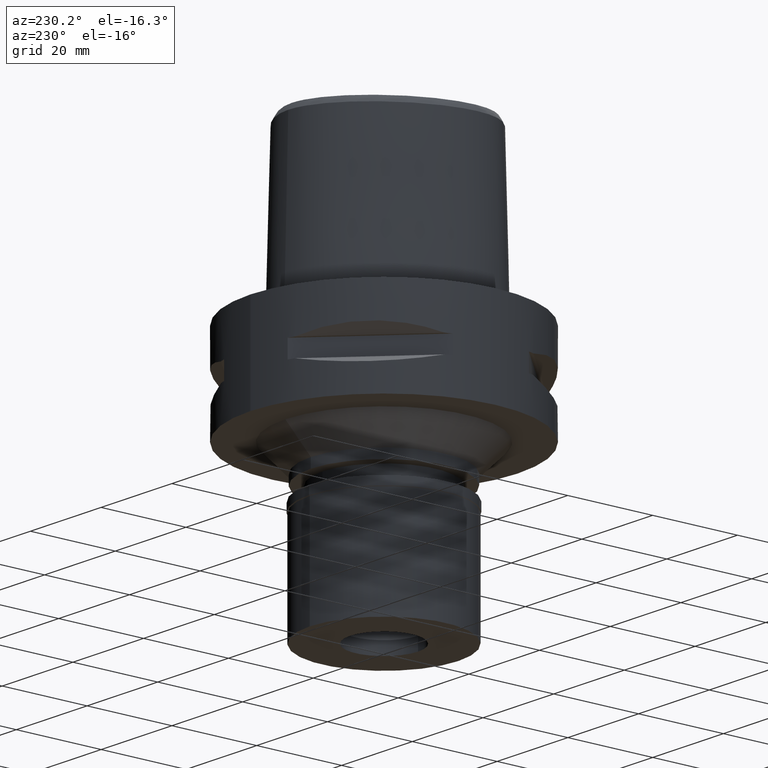
[diagram: clean part render]
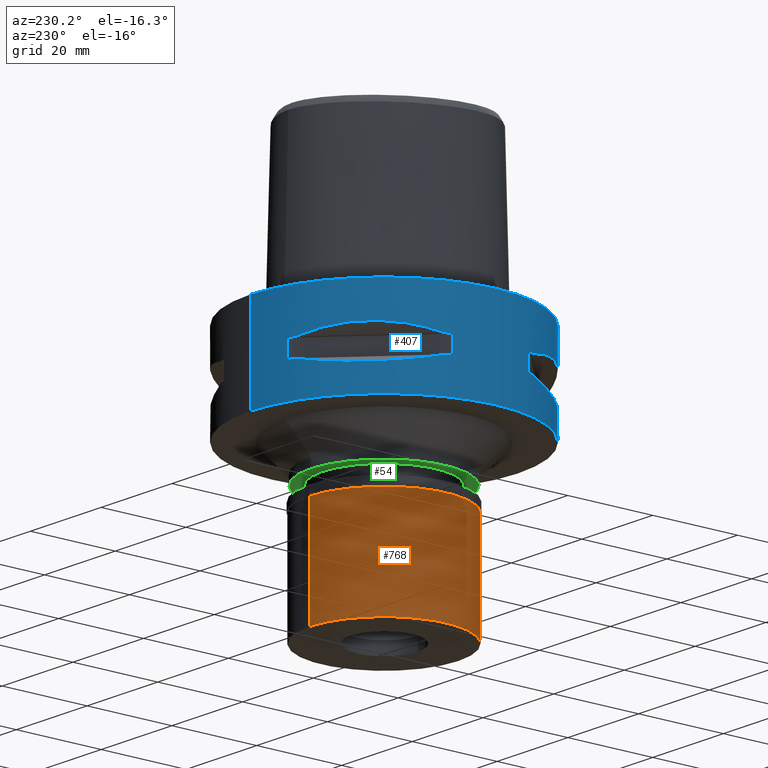
[diagram: same view with three faces highlighted in distinct colors, each labeled with its STEP entity id]
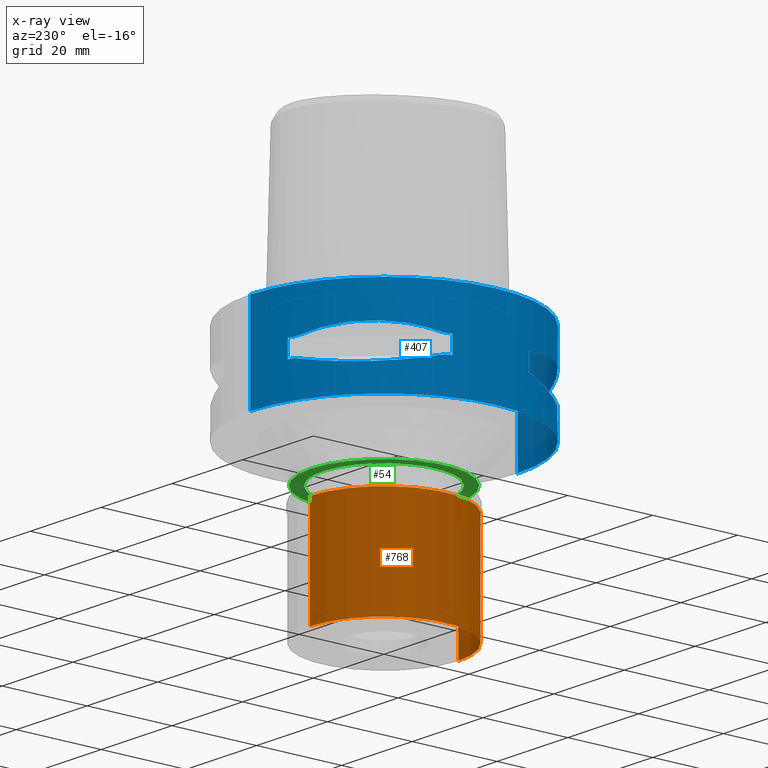
[diagram: x-ray of the same camera — body ghosted, the three highlighted faces saturated]
A machine part, auxiliary view with three faces highlighted in distinct colors.
The next image is the same camera in x-ray (body ghosted, the three faces saturated) — at least one of them is partly hidden behind the body in this view.
Their STEP definitions:

[orange] entity #768 — the highlighted cylindrical surface (partial cylindrical patch) has radius 17.5 mm, axis along (0, 0, -1).
#84 = DIRECTION ( 'NONE',  ( 0.0000000000000000000, 0.0000000000000000000, -1.000000000000000000 ) ) ;
#120 = CARTESIAN_POINT ( 'NONE',  ( 0.0000000000000000000, 17.50000000000000000, -2.100000000000000089 ) ) ;
#663 = AXIS2_PLACEMENT_3D ( 'NONE', #3666, #676, #3983 ) ;
#676 = DIRECTION ( 'NONE',  ( 0.0000000000000000000, 0.0000000000000000000, -1.000000000000000000 ) ) ;
#763 = CARTESIAN_POINT ( 'NONE',  ( 0.0000000000000000000, 17.50000000000000000, -26.70000000000000284 ) ) ;
#768 = ADVANCED_FACE ( 'NONE', ( #2633 ), #2184, .T. ) ;
#806 = CIRCLE ( 'NONE', #1267, 17.50000000000000000 ) ;
#957 = AXIS2_PLACEMENT_3D ( 'NONE', #1140, #84, #3317 ) ;
#1140 = CARTESIAN_POINT ( 'NONE',  ( 0.0000000000000000000, 0.0000000000000000000, 0.0000000000000000000 ) ) ;
#1267 = AXIS2_PLACEMENT_3D ( 'NONE', #2768, #2819, #2036 ) ;
#1651 = VERTEX_POINT ( 'NONE', #4441 ) ;
#1772 = LINE ( 'NONE', #2863, #3872 ) ;
#1798 = EDGE_LOOP ( 'NONE', ( #3828, #4399, #2653, #2811 ) ) ;
#2036 = DIRECTION ( 'NONE',  ( 0.0000000000000000000, 1.000000000000000000, 0.0000000000000000000 ) ) ;
#2184 = CYLINDRICAL_SURFACE ( 'NONE', #957, 17.50000000000000000 ) ;
#2221 = DIRECTION ( 'NONE',  ( 0.0000000000000000000, 0.0000000000000000000, -1.000000000000000000 ) ) ;
#2333 = CARTESIAN_POINT ( 'NONE',  ( 0.0000000000000000000, -17.50000000000000000, -2.100000000000000089 ) ) ;
#2541 = EDGE_CURVE ( 'NONE', #3635, #1651, #1772, .T. ) ;
#2598 = LINE ( 'NONE', #120, #3955 ) ;
#2633 = FACE_OUTER_BOUND ( 'NONE', #1798, .T. ) ;
#2653 = ORIENTED_EDGE ( 'NONE', *, *, #4419, .T. ) ;
#2768 = CARTESIAN_POINT ( 'NONE',  ( 0.0000000000000000000, 0.0000000000000000000, -26.70000000000000284 ) ) ;
#2811 = ORIENTED_EDGE ( 'NONE', *, *, #4233, .T. ) ;
#2819 = DIRECTION ( 'NONE',  ( 0.0000000000000000000, 0.0000000000000000000, 1.000000000000000000 ) ) ;
#2863 = CARTESIAN_POINT ( 'NONE',  ( 0.0000000000000000000, -17.50000000000000000, -2.100000000000000089 ) ) ;
#3202 = EDGE_CURVE ( 'NONE', #4619, #1651, #806, .T. ) ;
#3294 = VERTEX_POINT ( 'NONE', #4361 ) ;
#3317 = DIRECTION ( 'NONE',  ( 0.0000000000000000000, -1.000000000000000000, 0.0000000000000000000 ) ) ;
#3412 = CIRCLE ( 'NONE', #663, 17.50000000000000000 ) ;
#3590 = DIRECTION ( 'NONE',  ( 0.0000000000000000000, 0.0000000000000000000, -1.000000000000000000 ) ) ;
#3635 = VERTEX_POINT ( 'NONE', #2333 ) ;
#3666 = CARTESIAN_POINT ( 'NONE',  ( 0.0000000000000000000, 0.0000000000000000000, -2.100000000000000089 ) ) ;
#3828 = ORIENTED_EDGE ( 'NONE', *, *, #3202, .T. ) ;
#3872 = VECTOR ( 'NONE', #3590, 1000.000000000000000 ) ;
#3955 = VECTOR ( 'NONE', #2221, 1000.000000000000000 ) ;
#3983 = DIRECTION ( 'NONE',  ( 0.0000000000000000000, -1.000000000000000000, 0.0000000000000000000 ) ) ;
#4233 = EDGE_CURVE ( 'NONE', #3294, #4619, #2598, .T. ) ;
#4361 = CARTESIAN_POINT ( 'NONE',  ( 0.0000000000000000000, 17.50000000000000000, -2.100000000000000089 ) ) ;
#4399 = ORIENTED_EDGE ( 'NONE', *, *, #2541, .F. ) ;
#4419 = EDGE_CURVE ( 'NONE', #3635, #3294, #3412, .T. ) ;
#4441 = CARTESIAN_POINT ( 'NONE',  ( 0.0000000000000000000, -17.50000000000000000, -26.70000000000000284 ) ) ;
#4619 = VERTEX_POINT ( 'NONE', #763 ) ;

[blue] entity #407 — the highlighted cylindrical surface (partial cylindrical patch) has radius 31.5 mm, axis along (0, 0, -1).
#21 = CARTESIAN_POINT ( 'NONE',  ( -25.43927894891552910, 18.59229662065583355, -15.62866126334707850 ) ) ;
#45 = CARTESIAN_POINT ( 'NONE',  ( -18.81462633026353259, -25.37272068403002478, -8.309724968617139496 ) ) ;
#89 = FACE_BOUND ( 'NONE', #1484, .T. ) ;
#94 = CARTESIAN_POINT ( 'NONE',  ( -26.42800887047648928, 17.14106442934974339, -15.43984550238795883 ) ) ;
#113 = VECTOR ( 'NONE', #933, 1000.000000000000000 ) ;
#133 = CARTESIAN_POINT ( 'NONE',  ( -30.19251670572000279, 8.981198972016999349, -14.05000000000000071 ) ) ;
#175 = VERTEX_POINT ( 'NONE', #223 ) ;
#195 = ORIENTED_EDGE ( 'NONE', *, *, #3665, .F. ) ;
#221 = CARTESIAN_POINT ( 'NONE',  ( -8.981198972016999349, 30.19251670572000279, -14.05000000000000071 ) ) ;
#223 = CARTESIAN_POINT ( 'NONE',  ( -29.71690375017999841, 10.44775724750000023, -9.950000000002001244 ) ) ;
#258 = CARTESIAN_POINT ( 'NONE',  ( 0.0000000000000000000, 1.254650645725999920E-14, -14.05000000000000071 ) ) ;
#316 = CARTESIAN_POINT ( 'NONE',  ( -16.80193241490824008, 26.64486562695909555, -15.38992683736019096 ) ) ;
#324 = CARTESIAN_POINT ( 'NONE',  ( -12.73197616788688613, -28.91382665368660909, -14.65467361754157416 ) ) ;
#336 = CARTESIAN_POINT ( 'NONE',  ( 0.0000000000000000000, 1.254650645725999920E-14, -9.950000000000001066 ) ) ;
#342 = ORIENTED_EDGE ( 'NONE', *, *, #4001, .T. ) ;
#346 = EDGE_CURVE ( 'NONE', #4212, #3122, #1171, .T. ) ;
#350 = VERTEX_POINT ( 'NONE', #3687 ) ;
#356 = CARTESIAN_POINT ( 'NONE',  ( 0.0000000000000000000, 1.254650645725999920E-14, -14.05000000000000071 ) ) ;
#362 = CARTESIAN_POINT ( 'NONE',  ( 0.0000000000000000000, 1.254650645725999920E-14, -14.05000000000000071 ) ) ;
#366 = CARTESIAN_POINT ( 'NONE',  ( -25.37272068398780434, 18.81462633032050746, -8.309724968599480732 ) ) ;
#372 = ORIENTED_EDGE ( 'NONE', *, *, #1135, .F. ) ;
#396 = CARTESIAN_POINT ( 'NONE',  ( -29.71690375017999841, -10.44775724750000023, -9.950000000002001244 ) ) ;
#407 = ADVANCED_FACE ( 'NONE', ( #1881, #89, #1168 ), #4554, .T. ) ;
#420 = AXIS2_PLACEMENT_3D ( 'NONE', #4609, #1649, #3126 ) ;
#433 = CARTESIAN_POINT ( 'NONE',  ( -27.86285265926213128, 14.89252659058332462, -15.10765629752265049 ) ) ;
#462 = VERTEX_POINT ( 'NONE', #2715 ) ;
#535 = EDGE_CURVE ( 'NONE', #3782, #4471, #4278, .T. ) ;
#557 = DIRECTION ( 'NONE',  ( 0.0000000000000000000, 0.0000000000000000000, 1.000000000000000000 ) ) ;
#566 = ORIENTED_EDGE ( 'NONE', *, *, #2921, .T. ) ;
#579 = VECTOR ( 'NONE', #2526, 1000.000000000000000 ) ;
#589 = CARTESIAN_POINT ( 'NONE',  ( 0.0000000000000000000, 1.254650645725999920E-14, 0.0000000000000000000 ) ) ;
#598 = EDGE_LOOP ( 'NONE', ( #3330, #4375, #4118, #1127 ) ) ;
#670 = CARTESIAN_POINT ( 'NONE',  ( -26.70521063584573085, -16.70616724746297521, -15.37546661818069893 ) ) ;
#690 = CARTESIAN_POINT ( 'NONE',  ( -26.64486562695883620, -16.80193241490900746, -15.38992683736042011 ) ) ;
#699 = CARTESIAN_POINT ( 'NONE',  ( -13.25636937905250079, 28.62019653468292901, -14.74888225541883280 ) ) ;
#770 = CARTESIAN_POINT ( 'NONE',  ( 0.0000000000000000000, 31.50000000000000000, 0.0000000000000000000 ) ) ;
#771 = CARTESIAN_POINT ( 'NONE',  ( -26.54368690921832652, 16.96123479565093461, -15.41365572341623924 ) ) ;
#813 = DIRECTION ( 'NONE',  ( -0.3316748332540863653, -0.9433937698468619626, 0.0000000000000000000 ) ) ;
#814 = DIRECTION ( 'NONE',  ( 0.0000000000000000000, 1.000000000000000000, 0.0000000000000000000 ) ) ;
#851 = ORIENTED_EDGE ( 'NONE', *, *, #3686, .F. ) ;
#895 = AXIS2_PLACEMENT_3D ( 'NONE', #362, #2051, #3521 ) ;
#912 = LINE ( 'NONE', #2367, #1175 ) ;
#933 = DIRECTION ( 'NONE',  ( 0.0000000000000000000, 0.0000000000000000000, -1.000000000000000000 ) ) ;
#952 = DIRECTION ( 'NONE',  ( 0.0000000000000000000, 0.0000000000000000000, -1.000000000000000000 ) ) ;
#955 = CARTESIAN_POINT ( 'NONE',  ( -29.71690375017999841, -10.44775724750000023, -14.05000000000000071 ) ) ;
#990 = CARTESIAN_POINT ( 'NONE',  ( -16.96123479565102343, -26.54368690921830520, -15.41365572341627121 ) ) ;
#1046 = CIRCLE ( 'NONE', #1653, 31.50000000000001776 ) ;
#1081 = CARTESIAN_POINT ( 'NONE',  ( -16.89910283486704401, 26.58330558444640701, -15.40446471307534893 ) ) ;
#1082 = CARTESIAN_POINT ( 'NONE',  ( -18.81455742163205613, 25.37277178168287151, -8.309746333130389573 ) ) ;
#1092 = DIRECTION ( 'NONE',  ( -0.2851174276831918153, -0.9584925938322735872, 0.0000000000000000000 ) ) ;
#1120 = CARTESIAN_POINT ( 'NONE',  ( 0.0000000000000000000, 1.254650645725999920E-14, -9.950000000000001066 ) ) ;
#1122 = CARTESIAN_POINT ( 'NONE',  ( 0.0000000000000000000, 1.254650645725999920E-14, -22.00000000000000000 ) ) ;
#1127 = ORIENTED_EDGE ( 'NONE', *, *, #2958, .T. ) ;
#1135 = EDGE_CURVE ( 'NONE', #3440, #4312, #912, .T. ) ;
#1151 = CARTESIAN_POINT ( 'NONE',  ( -28.91382665368477944, 12.73197616789208197, -14.65467361754293485 ) ) ;
#1167 = DIRECTION ( 'NONE',  ( 0.0000000000000000000, 0.0000000000000000000, 1.000000000000000000 ) ) ;
#1168 = FACE_BOUND ( 'NONE', #4553, .T. ) ;
#1171 = CIRCLE ( 'NONE', #3388, 31.50000000000000000 ) ;
#1175 = VECTOR ( 'NONE', #1922, 1000.000000000000000 ) ;
#1177 = CARTESIAN_POINT ( 'NONE',  ( -27.88210502983995553, 14.84430321578704870, -8.906184731970032686 ) ) ;
#1204 = CARTESIAN_POINT ( 'NONE',  ( -29.71690375017999841, 10.44775724750000023, -9.950000000002001244 ) ) ;
#1220 = DIRECTION ( 'NONE',  ( 0.0000000000000000000, -1.000000000000000000, 0.0000000000000000000 ) ) ;
#1226 = CARTESIAN_POINT ( 'NONE',  ( -23.90617837150509573, -20.64154884324738504, -8.160627831300901747 ) ) ;
#1249 = CARTESIAN_POINT ( 'NONE',  ( -29.71690375017999841, 10.44775724750000023, -14.05000000000000071 ) ) ;
#1251 = VERTEX_POINT ( 'NONE', #3611 ) ;
#1268 = CARTESIAN_POINT ( 'NONE',  ( 0.0000000000000000000, 1.254650645725999920E-14, 2.449999999999999734 ) ) ;
#1300 = CARTESIAN_POINT ( 'NONE',  ( 0.0000000000000000000, 31.50000000000000000, 0.0000000000000000000 ) ) ;
#1333 = DIRECTION ( 'NONE',  ( -0.9433937698468619626, 0.3316748332540863653, 0.0000000000000000000 ) ) ;
#1341 = AXIS2_PLACEMENT_3D ( 'NONE', #3480, #557, #2065 ) ;
#1363 = EDGE_CURVE ( 'NONE', #1251, #2195, #2866, .T. ) ;
#1371 = DIRECTION ( 'NONE',  ( 0.0000000000000000000, 0.0000000000000000000, -1.000000000000000000 ) ) ;
#1415 = CARTESIAN_POINT ( 'NONE',  ( -12.70092055730904868, 28.92474506844683901, -9.353547358229722164 ) ) ;
#1437 = CARTESIAN_POINT ( 'NONE',  ( -16.70616724746166426, 26.70521063584618915, -15.37546661818032945 ) ) ;
#1439 = VERTEX_POINT ( 'NONE', #4014 ) ;
#1456 = CARTESIAN_POINT ( 'NONE',  ( -18.86897208075159327, 25.32725744466621975, -15.69588095933951699 ) ) ;
#1479 = CARTESIAN_POINT ( 'NONE',  ( -26.01217882834692929, 17.76952662672333716, -15.52665221626398839 ) ) ;
#1484 = EDGE_LOOP ( 'NONE', ( #2894, #195, #566, #4600, #3692, #2483, #4358, #4313 ) ) ;
#1528 = CARTESIAN_POINT ( 'NONE',  ( -27.88214534467230976, -14.84422749205291581, -8.906206096483270329 ) ) ;
#1563 = VERTEX_POINT ( 'NONE', #3519 ) ;
#1588 = CARTESIAN_POINT ( 'NONE',  ( -30.19251670572000279, -8.981198972016999349, -9.950000000000001066 ) ) ;
#1637 = LINE ( 'NONE', #1588, #113 ) ;
#1649 = DIRECTION ( 'NONE',  ( 0.0000000000000000000, 0.0000000000000000000, 1.000000000000000000 ) ) ;
#1653 = AXIS2_PLACEMENT_3D ( 'NONE', #356, #1371, #1092 ) ;
#1731 = EDGE_CURVE ( 'NONE', #2075, #175, #1792, .T. ) ;
#1744 = CARTESIAN_POINT ( 'NONE',  ( -23.89673728052704504, -20.65093790438166010, -15.83935804901764932 ) ) ;
#1750 = CARTESIAN_POINT ( 'NONE',  ( 0.0000000000000000000, -31.50000000000000000, -22.00000000000000000 ) ) ;
#1792 = B_SPLINE_CURVE_WITH_KNOTS ( 'NONE', 3,
 ( #4708, #1415, #1795, #1082, #3265, #2907, #366, #1177, #2752, #1204 ),
 .UNSPECIFIED., .F., .F.,
 ( 4, 2, 2, 2, 4 ),
 ( 0.0000000000000000000, 0.2500000000000000000, 0.5000000000000000000, 0.7500000000000000000, 1.000000000000000000 ),
 .UNSPECIFIED. ) ;
#1794 = CARTESIAN_POINT ( 'NONE',  ( -16.48208282229422039, 26.84474411198782207, -15.34094883778343110 ) ) ;
#1795 = CARTESIAN_POINT ( 'NONE',  ( -14.84422749199032943, 27.88214534470565198, -8.906206096500943303 ) ) ;
#1860 = CARTESIAN_POINT ( 'NONE',  ( 0.0000000000000000000, 31.50000000000000000, -22.00000000000000000 ) ) ;
#1869 = VERTEX_POINT ( 'NONE', #1249 ) ;
#1880 = CARTESIAN_POINT ( 'NONE',  ( -15.11986997311003300, 27.64634172018012848, -15.11207862404048008 ) ) ;
#1881 = FACE_OUTER_BOUND ( 'NONE', #598, .T. ) ;
#1904 = CARTESIAN_POINT ( 'NONE',  ( -10.44775724750000023, -29.71690375017999841, -9.950000000002001244 ) ) ;
#1922 = DIRECTION ( 'NONE',  ( 0.0000000000000000000, 0.0000000000000000000, 1.000000000000000000 ) ) ;
#1962 = CARTESIAN_POINT ( 'NONE',  ( -29.71690375017999841, -10.44775724750000023, -9.950000000002001244 ) ) ;
#1981 = CARTESIAN_POINT ( 'NONE',  ( -27.11872488588982577, -16.03138450079550026, -15.26880420108212633 ) ) ;
#2014 = AXIS2_PLACEMENT_3D ( 'NONE', #1268, #4508, #1220 ) ;
#2051 = DIRECTION ( 'NONE',  ( 0.0000000000000000000, 0.0000000000000000000, -1.000000000000000000 ) ) ;
#2065 = DIRECTION ( 'NONE',  ( -0.9584925938322735872, -0.2851174276831918153, 0.0000000000000000000 ) ) ;
#2075 = VERTEX_POINT ( 'NONE', #3896 ) ;
#2101 = CARTESIAN_POINT ( 'NONE',  ( -17.14106442935278807, -26.42800887047471647, -15.43984550238848108 ) ) ;
#2111 = AXIS2_PLACEMENT_3D ( 'NONE', #1120, #1167, #813 ) ;
#2140 = CARTESIAN_POINT ( 'NONE',  ( -25.32725744467784779, -18.86897208072815246, -15.69588095933470129 ) ) ;
#2151 = ORIENTED_EDGE ( 'NONE', *, *, #4227, .T. ) ;
#2195 = VERTEX_POINT ( 'NONE', #221 ) ;
#2208 = CARTESIAN_POINT ( 'NONE',  ( -8.981198972019999616, -30.19251670572000279, -14.05000000000000071 ) ) ;
#2245 = CARTESIAN_POINT ( 'NONE',  ( -12.70097436179016093, -28.92472615206971653, -9.353533115220882266 ) ) ;
#2346 = CARTESIAN_POINT ( 'NONE',  ( -28.62019653467917379, -13.25636937906317847, -14.74888225542168207 ) ) ;
#2367 = CARTESIAN_POINT ( 'NONE',  ( -8.981198972016999349, -30.19251670572000279, -14.05000000000000071 ) ) ;
#2380 = EDGE_CURVE ( 'NONE', #3385, #4244, #3632, .T. ) ;
#2381 = LINE ( 'NONE', #1300, #3712 ) ;
#2391 = ORIENTED_EDGE ( 'NONE', *, *, #535, .F. ) ;
#2400 = VERTEX_POINT ( 'NONE', #2411 ) ;
#2411 = CARTESIAN_POINT ( 'NONE',  ( -30.19251670572000279, -8.981198972019999616, -9.950000000000001066 ) ) ;
#2451 = CARTESIAN_POINT ( 'NONE',  ( -14.89252659057813055, -27.86285265926396093, -15.10765629752128092 ) ) ;
#2483 = ORIENTED_EDGE ( 'NONE', *, *, #4217, .F. ) ;
#2485 = EDGE_CURVE ( 'NONE', #3385, #3122, #3971, .T. ) ;
#2487 = DIRECTION ( 'NONE',  ( 0.0000000000000000000, 0.0000000000000000000, -1.000000000000000000 ) ) ;
#2526 = DIRECTION ( 'NONE',  ( 0.0000000000000000000, 0.0000000000000000000, -1.000000000000000000 ) ) ;
#2558 = EDGE_CURVE ( 'NONE', #1251, #1869, #3284, .T. ) ;
#2627 = ORIENTED_EDGE ( 'NONE', *, *, #4610, .T. ) ;
#2646 = DIRECTION ( 'NONE',  ( 0.0000000000000000000, 0.0000000000000000000, -1.000000000000000000 ) ) ;
#2698 = CARTESIAN_POINT ( 'NONE',  ( -26.48642424310615340, 17.05047092244463869, -15.42670883407968496 ) ) ;
#2708 = DIRECTION ( 'NONE',  ( 0.0000000000000000000, 0.0000000000000000000, 1.000000000000000000 ) ) ;
#2715 = CARTESIAN_POINT ( 'NONE',  ( -30.19251670572000279, -8.981198972016999349, -14.05000000000000071 ) ) ;
#2726 = AXIS2_PLACEMENT_3D ( 'NONE', #4208, #3152, #3199 ) ;
#2736 = CIRCLE ( 'NONE', #895, 31.50000000000000711 ) ;
#2752 = CARTESIAN_POINT ( 'NONE',  ( -28.92472615205409170, 12.70097436183466932, -9.353533115209113902 ) ) ;
#2773 = DIRECTION ( 'NONE',  ( 0.0000000000000000000, 0.0000000000000000000, -1.000000000000000000 ) ) ;
#2817 = CARTESIAN_POINT ( 'NONE',  ( -26.58330558444622227, -16.89910283486742415, -15.40446471307544662 ) ) ;
#2831 = EDGE_CURVE ( 'NONE', #2400, #3417, #2941, .T. ) ;
#2847 = DIRECTION ( 'NONE',  ( 0.0000000000000000000, -1.000000000000000000, 0.0000000000000000000 ) ) ;
#2866 = CIRCLE ( 'NONE', #3944, 31.50000000000000711 ) ;
#2874 = CARTESIAN_POINT ( 'NONE',  ( -26.84474411198696231, -16.48208282229673927, -15.34094883778413454 ) ) ;
#2894 = ORIENTED_EDGE ( 'NONE', *, *, #3905, .T. ) ;
#2907 = CARTESIAN_POINT ( 'NONE',  ( -23.90617837147178193, 20.64154884328073081, -8.160613588468008217 ) ) ;
#2921 = EDGE_CURVE ( 'NONE', #1439, #1869, #3950, .T. ) ;
#2926 = CARTESIAN_POINT ( 'NONE',  ( -20.65093790436479892, 23.89673728055571900, -15.83935804902246147 ) ) ;
#2941 = CIRCLE ( 'NONE', #1341, 31.50000000000001776 ) ;
#2947 = VECTOR ( 'NONE', #2708, 1000.000000000000000 ) ;
#2952 = CARTESIAN_POINT ( 'NONE',  ( -26.29071741523750916, 17.35163608580039707, -15.46976201925746786 ) ) ;
#2958 = EDGE_CURVE ( 'NONE', #4244, #4212, #2381, .T. ) ;
#3026 = CARTESIAN_POINT ( 'NONE',  ( -25.37277178164059421, -18.81455742168903456, -8.309746333112720151 ) ) ;
#3051 = CARTESIAN_POINT ( 'NONE',  ( -10.44775724750000023, -29.71690375017999841, -9.950000000002001244 ) ) ;
#3122 = VERTEX_POINT ( 'NONE', #1750 ) ;
#3126 = DIRECTION ( 'NONE',  ( -0.2851174276831918153, 0.9584925938322735872, 0.0000000000000000000 ) ) ;
#3152 = DIRECTION ( 'NONE',  ( 0.0000000000000000000, 0.0000000000000000000, -1.000000000000000000 ) ) ;
#3194 = EDGE_CURVE ( 'NONE', #350, #2075, #4482, .T. ) ;
#3199 = DIRECTION ( 'NONE',  ( -0.9584925938322735872, 0.2851174276831918153, 0.0000000000000000000 ) ) ;
#3213 = CARTESIAN_POINT ( 'NONE',  ( -10.44775724750000023, -29.71690375017999841, -14.05000000000000071 ) ) ;
#3265 = CARTESIAN_POINT ( 'NONE',  ( -20.64154884328072370, 23.90617837147178193, -8.160627831312675440 ) ) ;
#3284 = B_SPLINE_CURVE_WITH_KNOTS ( 'NONE', 3,
 ( #3989, #4351, #699, #1880, #4329, #1794, #1437, #316, #4369, #1081, #1456, #2926, #4037, #3308, #21, #1479, #2952, #94, #2698, #4080, #771, #433, #1151, #3796 ),
 .UNSPECIFIED., .F., .F.,
 ( 4, 1, 1, 1, 1, 1, 2, 2, 2, 1, 1, 1, 1, 1, 2, 2, 4 ),
 ( 0.0000000000000000000, 0.1249999999999908684, 0.1874999999999862887, 0.2187499999999841516, 0.2343749999999829858, 0.2421874999999825973, 0.2460937499999824030, 0.2499999999999822364, 0.4999999999999892308, 0.6249999999999928946, 0.6874999999999945599, 0.7187499999999956701, 0.7343749999999963363, 0.7421874999999965583, 0.7460937499999964473, 0.7499999999999963363, 1.000000000000000000 ),
 .UNSPECIFIED. ) ;
#3287 = CARTESIAN_POINT ( 'NONE',  ( 0.0000000000000000000, -31.50000000000000000, 0.0000000000000000000 ) ) ;
#3308 = CARTESIAN_POINT ( 'NONE',  ( -24.23018836745160698, 20.18579225686725565, -15.78559396979343354 ) ) ;
#3330 = ORIENTED_EDGE ( 'NONE', *, *, #346, .T. ) ;
#3385 = VERTEX_POINT ( 'NONE', #3998 ) ;
#3388 = AXIS2_PLACEMENT_3D ( 'NONE', #1122, #3765, #814 ) ;
#3403 = CARTESIAN_POINT ( 'NONE',  ( -28.92474506843119286, -12.70092055735351266, -9.353547358217943142 ) ) ;
#3417 = VERTEX_POINT ( 'NONE', #396 ) ;
#3425 = CARTESIAN_POINT ( 'NONE',  ( -29.31542262584122227, -11.58970337495909853, -14.35229357167468578 ) ) ;
#3431 = CARTESIAN_POINT ( 'NONE',  ( -20.64154884324738148, -23.90617837150509928, -8.160613588479783687 ) ) ;
#3440 = VERTEX_POINT ( 'NONE', #2208 ) ;
#3476 = B_SPLINE_CURVE_WITH_KNOTS ( 'NONE', 3,
 ( #1962, #3403, #1528, #3026, #1226, #3431, #45, #4439, #2245, #3051 ),
 .UNSPECIFIED., .F., .F.,
 ( 4, 2, 2, 2, 4 ),
 ( 0.0000000000000000000, 0.2499999999999999445, 0.4999999999999998890, 0.7499999999999997780, 1.000000000000000000 ),
 .UNSPECIFIED. ) ;
#3480 = CARTESIAN_POINT ( 'NONE',  ( 0.0000000000000000000, 1.254650645725999920E-14, -9.950000000000001066 ) ) ;
#3499 = CIRCLE ( 'NONE', #2111, 31.50000000000000711 ) ;
#3519 = CARTESIAN_POINT ( 'NONE',  ( -30.19251670572000279, 8.981198972016999349, -9.950000000000001066 ) ) ;
#3521 = DIRECTION ( 'NONE',  ( -0.9433937698468619626, -0.3316748332540863653, 0.0000000000000000000 ) ) ;
#3550 = CARTESIAN_POINT ( 'NONE',  ( -16.98999780422360573, -26.52527364208699723, -15.41788098766641646 ) ) ;
#3598 = CARTESIAN_POINT ( 'NONE',  ( -17.35163608580627681, -26.29071741523403816, -15.46976201925846439 ) ) ;
#3611 = CARTESIAN_POINT ( 'NONE',  ( -10.44775724750000023, 29.71690375017999841, -14.05000000000000071 ) ) ;
#3615 = CARTESIAN_POINT ( 'NONE',  ( -20.18579225689235912, -24.23018836743684545, -15.78559396979766305 ) ) ;
#3632 = CIRCLE ( 'NONE', #4096, 31.50000000000000000 ) ;
#3665 = EDGE_CURVE ( 'NONE', #1439, #1563, #3829, .T. ) ;
#3686 = EDGE_CURVE ( 'NONE', #2400, #462, #1637, .T. ) ;
#3687 = CARTESIAN_POINT ( 'NONE',  ( -8.981198972019999616, 30.19251670572000279, -9.950000000000001066 ) ) ;
#3692 = ORIENTED_EDGE ( 'NONE', *, *, #1363, .T. ) ;
#3712 = VECTOR ( 'NONE', #2773, 1000.000000000000000 ) ;
#3720 = CARTESIAN_POINT ( 'NONE',  ( -8.981198972016999349, 30.19251670572000279, -9.950000000000001066 ) ) ;
#3765 = DIRECTION ( 'NONE',  ( 0.0000000000000000000, 0.0000000000000000000, 1.000000000000000000 ) ) ;
#3776 = ORIENTED_EDGE ( 'NONE', *, *, #4355, .T. ) ;
#3782 = VERTEX_POINT ( 'NONE', #955 ) ;
#3796 = CARTESIAN_POINT ( 'NONE',  ( -29.71690375017999841, 10.44775724750000023, -14.05000000000000071 ) ) ;
#3798 = CIRCLE ( 'NONE', #4267, 31.50000000000000711 ) ;
#3815 = CARTESIAN_POINT ( 'NONE',  ( -27.64634172017731117, -15.11986997311805325, -15.11207862404262947 ) ) ;
#3829 = LINE ( 'NONE', #133, #2947 ) ;
#3896 = CARTESIAN_POINT ( 'NONE',  ( -10.44775724750000023, 29.71690375017999841, -9.950000000002001244 ) ) ;
#3905 = EDGE_CURVE ( 'NONE', #175, #1563, #3798, .T. ) ;
#3940 = CARTESIAN_POINT ( 'NONE',  ( -8.981198972016999349, -30.19251670572000279, -9.950000000000001066 ) ) ;
#3944 = AXIS2_PLACEMENT_3D ( 'NONE', #258, #2487, #3952 ) ;
#3950 = CIRCLE ( 'NONE', #2726, 31.50000000000001776 ) ;
#3952 = DIRECTION ( 'NONE',  ( -0.3316748332540863653, 0.9433937698468619626, 0.0000000000000000000 ) ) ;
#3957 = CARTESIAN_POINT ( 'NONE',  ( -26.60451452154899243, -16.86571563436900334, -15.39949295786335703 ) ) ;
#3971 = LINE ( 'NONE', #3287, #579 ) ;
#3989 = CARTESIAN_POINT ( 'NONE',  ( -10.44775724750000023, 29.71690375017999841, -14.05000000000000071 ) ) ;
#3998 = CARTESIAN_POINT ( 'NONE',  ( 0.0000000000000000000, -31.50000000000000000, 0.0000000000000000000 ) ) ;
#4001 = EDGE_CURVE ( 'NONE', #3782, #462, #2736, .T. ) ;
#4014 = CARTESIAN_POINT ( 'NONE',  ( -30.19251670572000279, 8.981198972019999616, -14.05000000000000071 ) ) ;
#4034 = DIRECTION ( 'NONE',  ( 0.0000000000000000000, 0.0000000000000000000, 1.000000000000000000 ) ) ;
#4037 = CARTESIAN_POINT ( 'NONE',  ( -23.08532645888064394, 21.46242677078517502, -15.83938991065631363 ) ) ;
#4080 = CARTESIAN_POINT ( 'NONE',  ( -26.52527364208752303, 16.98999780422271044, -15.41788098766625659 ) ) ;
#4096 = AXIS2_PLACEMENT_3D ( 'NONE', #589, #952, #2847 ) ;
#4118 = ORIENTED_EDGE ( 'NONE', *, *, #2380, .T. ) ;
#4208 = CARTESIAN_POINT ( 'NONE',  ( 0.0000000000000000000, 1.254650645725999920E-14, -14.05000000000000071 ) ) ;
#4212 = VERTEX_POINT ( 'NONE', #1860 ) ;
#4217 = EDGE_CURVE ( 'NONE', #350, #2195, #4489, .T. ) ;
#4227 = EDGE_CURVE ( 'NONE', #3417, #4517, #3476, .T. ) ;
#4244 = VERTEX_POINT ( 'NONE', #770 ) ;
#4267 = AXIS2_PLACEMENT_3D ( 'NONE', #336, #4034, #1333 ) ;
#4278 = B_SPLINE_CURVE_WITH_KNOTS ( 'NONE', 3,
 ( #4530, #3425, #2346, #3815, #1981, #2874, #670, #690, #3957, #2817, #2140, #1744, #4280, #3615, #4319, #4359, #3598, #2101, #4718, #3550, #990, #2451, #324, #3213 ),
 .UNSPECIFIED., .F., .F.,
 ( 4, 1, 1, 1, 1, 1, 2, 2, 2, 1, 1, 1, 1, 1, 2, 2, 4 ),
 ( 0.0000000000000000000, 0.1249999999999996947, 0.1874999999999995837, 0.2187499999999996392, 0.2343749999999997224, 0.2421874999999996392, 0.2460937499999994726, 0.2499999999999993339, 0.4999999999999910072, 0.6249999999999866773, 0.6874999999999845679, 0.7187499999999832356, 0.7343749999999825695, 0.7421874999999822364, 0.7460937499999822364, 0.7499999999999822364, 1.000000000000000000 ),
 .UNSPECIFIED. ) ;
#4280 = CARTESIAN_POINT ( 'NONE',  ( -21.46242677079953509, -23.08532645887220625, -15.83938991065873481 ) ) ;
#4312 = VERTEX_POINT ( 'NONE', #3940 ) ;
#4313 = ORIENTED_EDGE ( 'NONE', *, *, #1731, .T. ) ;
#4319 = CARTESIAN_POINT ( 'NONE',  ( -18.59229662067467004, -25.43927894890445529, -15.62866126335025641 ) ) ;
#4329 = CARTESIAN_POINT ( 'NONE',  ( -16.03138450079080712, 27.11872488589147068, -15.26880420108086156 ) ) ;
#4351 = CARTESIAN_POINT ( 'NONE',  ( -11.58970337495298608, 29.31542262584333969, -14.35229357167303021 ) ) ;
#4355 = EDGE_CURVE ( 'NONE', #3440, #4471, #1046, .T. ) ;
#4358 = ORIENTED_EDGE ( 'NONE', *, *, #3194, .T. ) ;
#4359 = CARTESIAN_POINT ( 'NONE',  ( -17.76952662673432570, -26.01217882834047401, -15.52665221626585002 ) ) ;
#4369 = CARTESIAN_POINT ( 'NONE',  ( -16.86571563436860188, 26.60451452154913454, -15.39949295786322558 ) ) ;
#4375 = ORIENTED_EDGE ( 'NONE', *, *, #2485, .F. ) ;
#4439 = CARTESIAN_POINT ( 'NONE',  ( -14.84430321572441613, -27.88210502987326578, -8.906184731987689673 ) ) ;
#4448 = ORIENTED_EDGE ( 'NONE', *, *, #2831, .T. ) ;
#4471 = VERTEX_POINT ( 'NONE', #4724 ) ;
#4482 = CIRCLE ( 'NONE', #420, 31.50000000000001776 ) ;
#4489 = LINE ( 'NONE', #3720, #4716 ) ;
#4508 = DIRECTION ( 'NONE',  ( 0.0000000000000000000, 0.0000000000000000000, -1.000000000000000000 ) ) ;
#4517 = VERTEX_POINT ( 'NONE', #1904 ) ;
#4530 = CARTESIAN_POINT ( 'NONE',  ( -29.71690375017999841, -10.44775724750000023, -14.05000000000000071 ) ) ;
#4553 = EDGE_LOOP ( 'NONE', ( #2627, #372, #3776, #2391, #342, #851, #4448, #2151 ) ) ;
#4554 = CYLINDRICAL_SURFACE ( 'NONE', #2014, 31.50000000000000000 ) ;
#4600 = ORIENTED_EDGE ( 'NONE', *, *, #2558, .F. ) ;
#4609 = CARTESIAN_POINT ( 'NONE',  ( 0.0000000000000000000, 1.254650645725999920E-14, -9.950000000000001066 ) ) ;
#4610 = EDGE_CURVE ( 'NONE', #4517, #4312, #3499, .T. ) ;
#4708 = CARTESIAN_POINT ( 'NONE',  ( -10.44775724750000023, 29.71690375017999841, -9.950000000002001244 ) ) ;
#4716 = VECTOR ( 'NONE', #2646, 1000.000000000000000 ) ;
#4718 = CARTESIAN_POINT ( 'NONE',  ( -17.05047092244640083, -26.48642424310511601, -15.42670883407999227 ) ) ;
#4724 = CARTESIAN_POINT ( 'NONE',  ( -10.44775724750000023, -29.71690375017999841, -14.05000000000000071 ) ) ;

[green] entity #54 — the highlighted planar face has unit normal (0, 0, -1).
#54 = ADVANCED_FACE ( 'NONE', ( #923, #3430 ), #4178, .T. ) ;
#57 = VERTEX_POINT ( 'NONE', #1931 ) ;
#178 = EDGE_CURVE ( 'NONE', #1361, #57, #2865, .T. ) ;
#335 = AXIS2_PLACEMENT_3D ( 'NONE', #480, #4182, #2274 ) ;
#406 = AXIS2_PLACEMENT_3D ( 'NONE', #1225, #4488, #3453 ) ;
#459 = CARTESIAN_POINT ( 'NONE',  ( 0.0000000000000000000, 1.254650645725999920E-14, -30.20000000000000284 ) ) ;
#480 = CARTESIAN_POINT ( 'NONE',  ( 0.0000000000000000000, 1.254650645725999920E-14, -30.20000000000000284 ) ) ;
#520 = VERTEX_POINT ( 'NONE', #3123 ) ;
#540 = VERTEX_POINT ( 'NONE', #2158 ) ;
#686 = DIRECTION ( 'NONE',  ( 0.0000000000000000000, 1.000000000000000000, 0.0000000000000000000 ) ) ;
#918 = EDGE_LOOP ( 'NONE', ( #4427, #1083 ) ) ;
#923 = FACE_OUTER_BOUND ( 'NONE', #918, .T. ) ;
#961 = CIRCLE ( 'NONE', #3563, 17.25000000000000000 ) ;
#1083 = ORIENTED_EDGE ( 'NONE', *, *, #1993, .F. ) ;
#1225 = CARTESIAN_POINT ( 'NONE',  ( 0.0000000000000000000, 0.0000000000000000000, -30.20000000000000284 ) ) ;
#1361 = VERTEX_POINT ( 'NONE', #3546 ) ;
#1362 = CARTESIAN_POINT ( 'NONE',  ( 0.0000000000000000000, 1.254650645725999920E-14, -30.20000000000000284 ) ) ;
#1382 = EDGE_CURVE ( 'NONE', #520, #540, #3313, .T. ) ;
#1554 = DIRECTION ( 'NONE',  ( 0.0000000000000000000, 0.0000000000000000000, 1.000000000000000000 ) ) ;
#1752 = EDGE_CURVE ( 'NONE', #57, #1361, #4394, .T. ) ;
#1931 = CARTESIAN_POINT ( 'NONE',  ( 0.0000000000000000000, 14.50000000000000000, -30.20000000000000284 ) ) ;
#1993 = EDGE_CURVE ( 'NONE', #540, #520, #961, .T. ) ;
#2158 = CARTESIAN_POINT ( 'NONE',  ( 0.0000000000000000000, -17.25000000000000000, -30.20000000000000284 ) ) ;
#2274 = DIRECTION ( 'NONE',  ( 0.0000000000000000000, 1.000000000000000000, 0.0000000000000000000 ) ) ;
#2335 = EDGE_LOOP ( 'NONE', ( #4425, #3680 ) ) ;
#2800 = AXIS2_PLACEMENT_3D ( 'NONE', #1362, #2812, #686 ) ;
#2812 = DIRECTION ( 'NONE',  ( 0.0000000000000000000, 0.0000000000000000000, 1.000000000000000000 ) ) ;
#2865 = CIRCLE ( 'NONE', #3780, 14.50000000000000000 ) ;
#3123 = CARTESIAN_POINT ( 'NONE',  ( 0.0000000000000000000, 17.25000000000000000, -30.20000000000000284 ) ) ;
#3171 = DIRECTION ( 'NONE',  ( 0.0000000000000000000, -1.000000000000000000, 0.0000000000000000000 ) ) ;
#3216 = DIRECTION ( 'NONE',  ( 0.0000000000000000000, 0.0000000000000000000, -1.000000000000000000 ) ) ;
#3313 = CIRCLE ( 'NONE', #2800, 17.25000000000000000 ) ;
#3430 = FACE_BOUND ( 'NONE', #2335, .T. ) ;
#3453 = DIRECTION ( 'NONE',  ( 0.0000000000000000000, -1.000000000000000000, 0.0000000000000000000 ) ) ;
#3546 = CARTESIAN_POINT ( 'NONE',  ( 0.0000000000000000000, -14.50000000000000000, -30.20000000000000284 ) ) ;
#3563 = AXIS2_PLACEMENT_3D ( 'NONE', #459, #1554, #4491 ) ;
#3680 = ORIENTED_EDGE ( 'NONE', *, *, #178, .F. ) ;
#3780 = AXIS2_PLACEMENT_3D ( 'NONE', #3939, #3216, #3171 ) ;
#3939 = CARTESIAN_POINT ( 'NONE',  ( 0.0000000000000000000, 1.254650645725999920E-14, -30.20000000000000284 ) ) ;
#4178 = PLANE ( 'NONE',  #406 ) ;
#4182 = DIRECTION ( 'NONE',  ( 0.0000000000000000000, 0.0000000000000000000, -1.000000000000000000 ) ) ;
#4394 = CIRCLE ( 'NONE', #335, 14.50000000000000000 ) ;
#4425 = ORIENTED_EDGE ( 'NONE', *, *, #1752, .F. ) ;
#4427 = ORIENTED_EDGE ( 'NONE', *, *, #1382, .F. ) ;
#4488 = DIRECTION ( 'NONE',  ( 0.0000000000000000000, 0.0000000000000000000, -1.000000000000000000 ) ) ;
#4491 = DIRECTION ( 'NONE',  ( 0.0000000000000000000, -1.000000000000000000, 0.0000000000000000000 ) ) ;